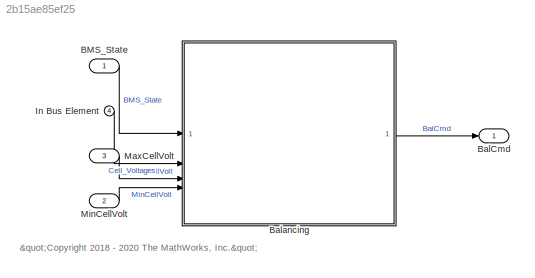
MODEL slx_2b15ae85ef25
KIND model
BLOCK [Inport] BMS_State
  OutDataTypeStr = Enum: BMS_State_Enum
  PortDimensions = 1
  SampleTime = [5,0]
  SamplingMode = Sample based
  SignalType = real
BLOCK [Outport] BalCmd
  OutDataTypeStr = boolean
  PortDimensions = [1,NumModules*Ns_Module]
  SampleTime = [5,0]
  SamplingMode = Sample based
  SignalType = real
  VectorParamsAs1DForOutWhenUnconnected = off
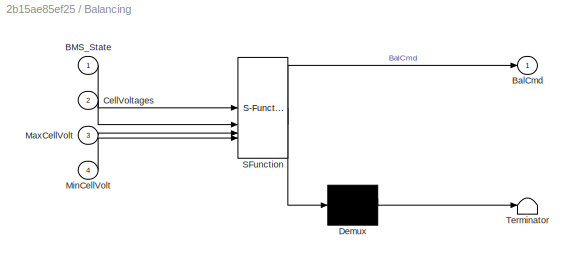
BLOCK [SubSystem] Balancing
  ErrorFcn = Stateflow.Translate.translate
  PermitHierarchicalResolution = ExplicitOnly
  SFBlockType = Chart
  TreatAsAtomicUnit = on
  VariantControl = (default)
BLOCK [Demux] Balancing/ Demux 
  Outputs = 1
BLOCK [S-Function] Balancing/ SFunction 
  EnableBusSupport = off
  FunctionName = sf_sfun
  Parameters = BalNotActWait,BalOffWait,BalOnWait,TargetDeltaV,flgEnBalancing
  PortCounts = [4 2]
  SFcnIsStateOwnerBlock = off
  SFunctionDeploymentMode = off
  Tag = Stateflow S-Function 1
BLOCK [Terminator] Balancing/ Terminator 
BLOCK [Inport] Balancing/BMS_State
BLOCK [Outport] Balancing/BalCmd
  VectorParamsAs1DForOutWhenUnconnected = off
BLOCK [Inport] Balancing/CellVoltages
  Port = 2
BLOCK [Inport] Balancing/MaxCellVolt
  Port = 3
BLOCK [Inport] Balancing/MinCellVolt
  Port = 4
BLOCK [Inport] In Bus Element
  Port = 4
BLOCK [Inport] MaxCellVolt
  OutDataTypeStr = single
  Port = 3
  PortDimensions = 1
  SampleTime = [5,0]
  SamplingMode = Sample based
  SignalType = real
BLOCK [Inport] MinCellVolt
  OutDataTypeStr = single
  Port = 2
  PortDimensions = 1
  SampleTime = [5,0]
  SamplingMode = Sample based
  SignalType = real
ANNOTATION (root): "<copyright redacted>
LINE BMS_State:1 -> Balancing:1
LINE Balancing:1 -> BalCmd:1
LINE In Bus Element:1 -> Balancing:2
LINE MaxCellVolt:1 -> Balancing:3
LINE MinCellVolt:1 -> Balancing:4
CHART Balancing states=5 transitions=7
  STATE_LABEL 'BalancingOFF\nen:\nBalCmd(:,:) = false;\nen,du:\nDeltaCellVolt = MaxCellVolt - MinCellVolt;'
  STATE_LABEL 'BalancingON\nen, du:\nDeltaCellVolt = MaxCellVolt - MinCellVolt;\n'
  STATE_LABEL "BalActive\nen, du:\nBalCmd = ((CellVoltages - MinCellVolt) > TargetDeltaV/2)';\nflgBalCompl = all(~BalCmd);"
  STATE_LABEL 'BalNotActive'
  STATE_LABEL '[after(BalNotActWait,sec) && ...\nDeltaCellVolt > TargetDeltaV]'
  STATE_LABEL '[flgBalCompl]'
  STATE_LABEL "BalActive\nen, du:\nBalCmd = ((CellVoltages - MinCellVolt) > TargetDeltaV/2)';\nflgBalCompl = all(~BalCmd);"
  STATE_LABEL 'BalNotActive'
  STATE_LABEL '<!DOCTYPE HTML PUBLIC "-//W3C//DTD HTML 4.0//EN" "http://www.w3.org/TR/REC-html40/strict.dtd">\n<html><head><meta name="qrichtext" content="1" /><style type="text/css">\np, li { white-space: pre-wrap; }\n</style></head><body align="left" style=" font-family:\'Helvetica\'; font-size:12px; font-weight:400; font-style:normal;">\n<p align="left" style=" margin-top:0px; margin-bottom:0px; margin-left:0px; ma...<+220ch>'
CHART  states=0 transitions=0
